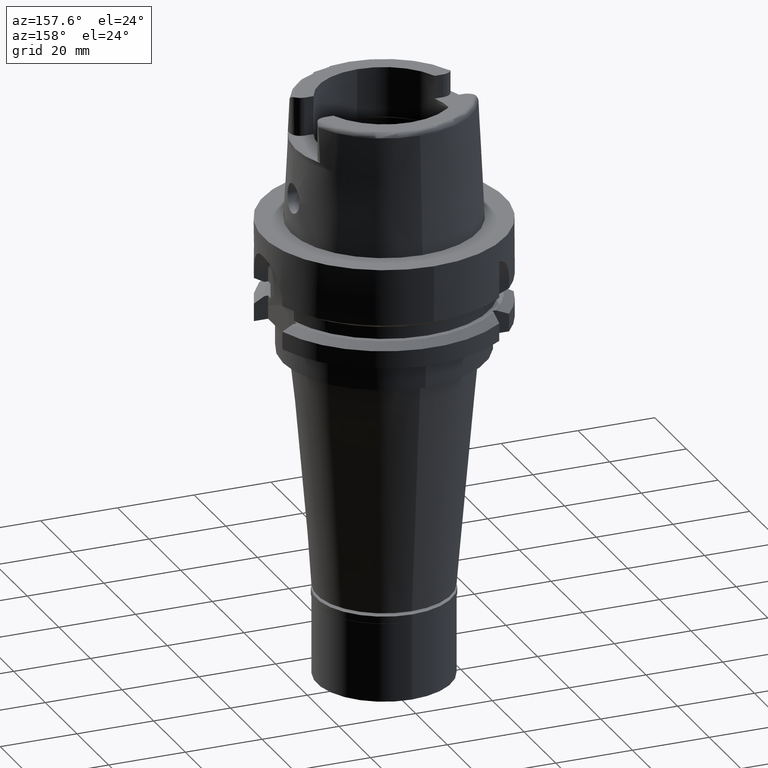
[diagram: clean part render]
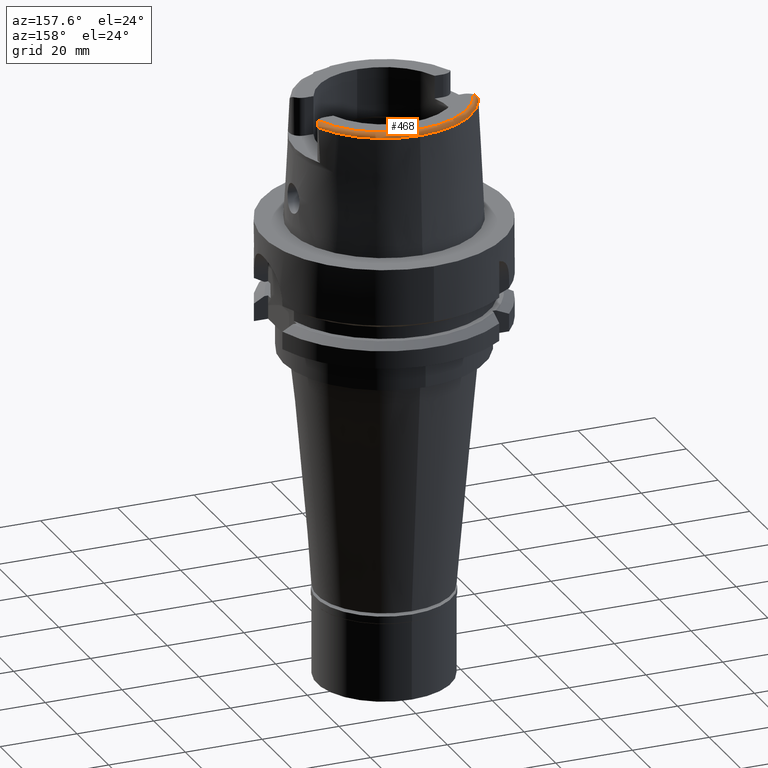
[diagram: same view with one face highlighted and labeled with its STEP entity id]
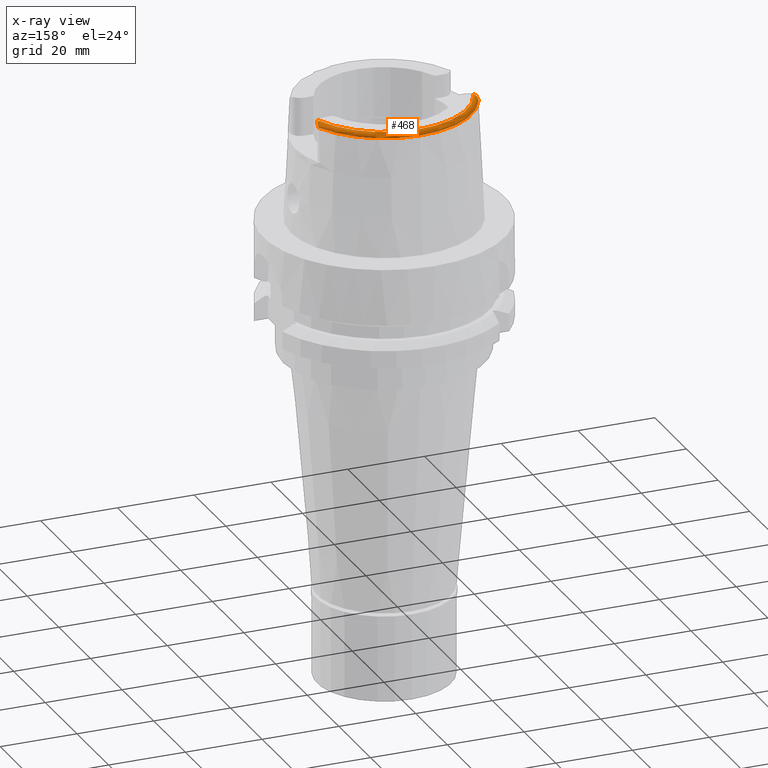
[diagram: x-ray of the same camera — body ghosted, the highlighted face saturated]
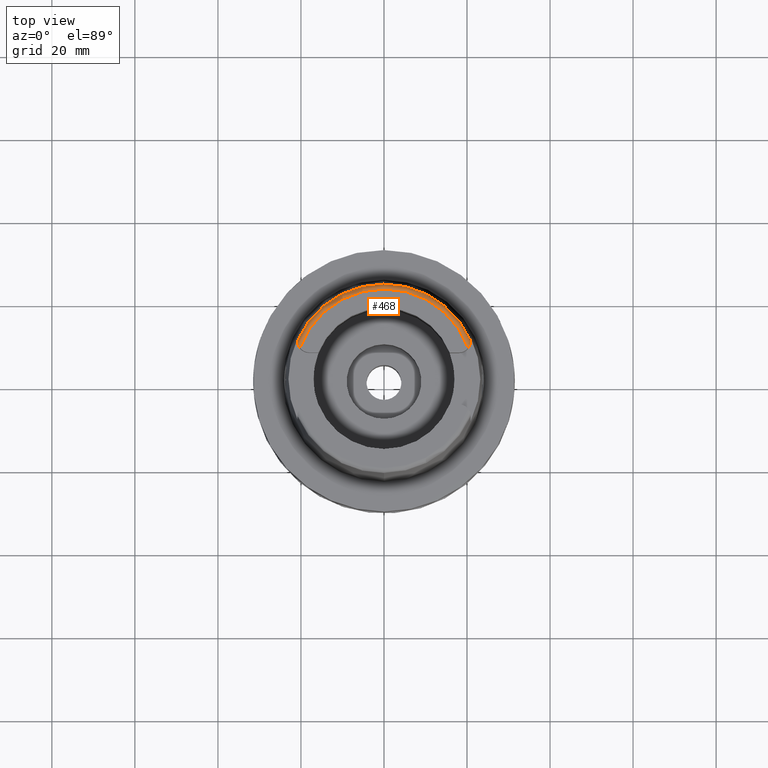
[diagram: same view with one face highlighted and labeled with its STEP entity id]
A machine part, auxiliary view. The second image highlights one B-rep face of the part: STEP entity #468.
The next image is the same camera in x-ray: the body ghosted, the highlighted face saturated — about 0% of this face is hidden behind the body in this view.
A second angle (top view) of the same face is appended — the face is thin or edge-on in the first view.
In plain terms, the highlighted toroidal blend (fillet) surface has major radius 21.5735 mm and minor (blend) radius 1.2 mm.
Its self-contained STEP definition (entity closure, byte-faithful):
#7 = TOROIDAL_SURFACE ( 'NONE', #106, 21.57348458609000019, 1.199999999999999956 ) ;
#55 = B_SPLINE_CURVE_WITH_KNOTS ( 'NONE', 3,
 ( #1801, #157, #1362, #3960 ),
 .UNSPECIFIED., .F., .F.,
 ( 4, 4 ),
 ( 0.0000000000000000000, 1.000000000000000000 ),
 .UNSPECIFIED. ) ;
#67 = VERTEX_POINT ( 'NONE', #2731 ) ;
#106 = AXIS2_PLACEMENT_3D ( 'NONE', #385, #1874, #3242 ) ;
#113 = CARTESIAN_POINT ( 'NONE',  ( 0.0000000000000000000, 0.0000000000000000000, 30.85992712280000205 ) ) ;
#157 = CARTESIAN_POINT ( 'NONE',  ( 20.87000000000000099, 9.104744530406245318, 30.90884546143532674 ) ) ;
#197 = CARTESIAN_POINT ( 'NONE',  ( -20.75055253134364364, 8.329091729766906482, 31.70656646438284199 ) ) ;
#216 = DIRECTION ( 'NONE',  ( 0.0000000000000000000, 0.0000000000000000000, -1.000000000000000000 ) ) ;
#223 = CARTESIAN_POINT ( 'NONE',  ( -20.61597707634912524, 7.967249471448660358, 31.87746724825710132 ) ) ;
#247 = CARTESIAN_POINT ( 'NONE',  ( -20.83207734620328466, 8.677753411955119844, 31.47646825142441074 ) ) ;
#274 = ORIENTED_EDGE ( 'NONE', *, *, #3472, .F. ) ;
#293 = CARTESIAN_POINT ( 'NONE',  ( 20.87000000000000099, 9.070000000000000284, 31.00584217417999966 ) ) ;
#319 = EDGE_CURVE ( 'NONE', #1744, #3413, #3605, .T. ) ;
#385 = CARTESIAN_POINT ( 'NONE',  ( 0.0000000000000000000, 0.0000000000000000000, 30.80000000000000071 ) ) ;
#415 = CARTESIAN_POINT ( 'NONE',  ( -20.84221966324597020, 8.746321035380939080, 31.42026127488749410 ) ) ;
#468 = ADVANCED_FACE ( 'NONE', ( #640 ), #7, .T. ) ;
#528 = DIRECTION ( 'NONE',  ( 0.0000000000000000000, 0.0000000000000000000, -1.000000000000000000 ) ) ;
#565 = EDGE_CURVE ( 'NONE', #1990, #3204, #4847, .T. ) ;
#603 = CARTESIAN_POINT ( 'NONE',  ( -20.66370344468706222, 8.078116150860479294, 31.83255883841079026 ) ) ;
#640 = FACE_OUTER_BOUND ( 'NONE', #1065, .T. ) ;
#664 = CARTESIAN_POINT ( 'NONE',  ( -20.62891659523017296, 7.996408381740554461, 31.86606885274613532 ) ) ;
#677 = CARTESIAN_POINT ( 'NONE',  ( 20.62708735343946032, 7.929163021830337499, 31.87906842405599406 ) ) ;
#738 = CARTESIAN_POINT ( 'NONE',  ( 0.0000000000000000000, 0.0000000000000000000, 30.85992712280000205 ) ) ;
#755 = CARTESIAN_POINT ( 'NONE',  ( 20.80812790947983615, 8.484612967074216527, 31.59602072999934208 ) ) ;
#820 = CARTESIAN_POINT ( 'NONE',  ( 0.0000000000000000000, 22.77198729362000051, 30.85992712280000205 ) ) ;
#853 = CARTESIAN_POINT ( 'NONE',  ( 20.78403160628558410, 8.375250664263308664, 31.66595904763902425 ) ) ;
#928 = EDGE_CURVE ( 'NONE', #3204, #3717, #4038, .T. ) ;
#995 = DIRECTION ( 'NONE',  ( -0.9395199128801114963, 0.3424942821446042007, 0.0000000000000000000 ) ) ;
#1065 = EDGE_LOOP ( 'NONE', ( #4591, #274, #4803, #4850, #4356, #5270 ) ) ;
#1071 = CARTESIAN_POINT ( 'NONE',  ( -20.80898429863476196, 8.559915162000578448, 31.56189280836373001 ) ) ;
#1112 = CARTESIAN_POINT ( 'NONE',  ( 20.65620179696908210, 7.996386078922752993, 31.85285102458320594 ) ) ;
#1168 = CARTESIAN_POINT ( 'NONE',  ( 20.81760054353890865, 8.530290260113611467, 31.56595774672369714 ) ) ;
#1205 = CARTESIAN_POINT ( 'NONE',  ( -20.86974110888999689, 9.111383544930001577, 30.85992740201000117 ) ) ;
#1269 = CARTESIAN_POINT ( 'NONE',  ( 20.85720172933440608, 8.797369775704238393, 31.35967840067433698 ) ) ;
#1362 = CARTESIAN_POINT ( 'NONE',  ( 20.87000000000000099, 9.091125264149576779, 30.95748277890866262 ) ) ;
#1386 = CARTESIAN_POINT ( 'NONE',  ( -20.86974110888999689, 9.111383544930001577, 30.85992740201000117 ) ) ;
#1452 = EDGE_CURVE ( 'NONE', #3717, #67, #55, .T. ) ;
#1453 = CARTESIAN_POINT ( 'NONE',  ( -20.79483016963291320, 8.495913259825712771, 31.60526339057393486 ) ) ;
#1545 = CARTESIAN_POINT ( 'NONE',  ( 20.63146032315612999, 7.939036916245964193, 31.87531411682859073 ) ) ;
#1574 = CARTESIAN_POINT ( 'NONE',  ( 20.82934825906085408, 8.592292302589214614, 31.52341069058531176 ) ) ;
#1588 = CARTESIAN_POINT ( 'NONE',  ( -20.86261050773239134, 8.942725714805623838, 31.21867867333055102 ) ) ;
#1744 = VERTEX_POINT ( 'NONE', #3016 ) ;
#1801 = CARTESIAN_POINT ( 'NONE',  ( 20.86994457043000040, 9.110917567833000774, 30.85992712280000205 ) ) ;
#1842 = CARTESIAN_POINT ( 'NONE',  ( -20.73801250936140761, 8.288016427801872865, 31.72924703318835071 ) ) ;
#1874 = DIRECTION ( 'NONE',  ( 0.0000000000000000000, 0.0000000000000000000, 1.000000000000000000 ) ) ;
#1884 = B_SPLINE_CURVE_WITH_KNOTS ( 'NONE', 3,
 ( #2355, #1954, #4355, #4795, #3169, #2308, #3630, #223, #664, #4000, #603, #4768, #3948, #1842, #2672, #197, #3553, #5252, #1453, #5274, #1071, #2331, #247, #415, #2803, #5356, #5417, #1588, #5440, #2438, #1205 ),
 .UNSPECIFIED., .F., .F.,
 ( 4, 2, 2, 1, 2, 2, 1, 1, 2, 2, 2, 2, 2, 2, 2, 2, 4 ),
 ( 0.0000000000000000000, 0.1250000000000083267, 0.1875000000000121292, 0.2187500000000129619, 0.2343750000000140166, 0.2500000000000150990, 0.3125000000000175970, 0.3437500000000188183, 0.3593750000000189848, 0.3750000000000191513, 0.4375000000000111577, 0.4687500000000088818, 0.5000000000000066613, 0.6250000000000064393, 0.6875000000000053291, 0.7500000000000043299, 1.000000000000000000 ),
 .UNSPECIFIED. ) ;
#1941 = CARTESIAN_POINT ( 'NONE',  ( 20.86553564939725902, 8.903263224952288724, 31.25452347758274385 ) ) ;
#1954 = CARTESIAN_POINT ( 'NONE',  ( -20.34118759868380621, 7.482558760432435285, 32.00000000000000000 ) ) ;
#1990 = VERTEX_POINT ( 'NONE', #1386 ) ;
#1992 = CARTESIAN_POINT ( 'NONE',  ( 20.80533968137952527, 8.471710275974487558, 31.60434862615828777 ) ) ;
#2123 = CARTESIAN_POINT ( 'NONE',  ( 20.68874327068195029, 8.076795901193991156, 31.81917191785262844 ) ) ;
#2305 = EDGE_CURVE ( 'NONE', #1744, #1990, #1884, .T. ) ;
#2308 = CARTESIAN_POINT ( 'NONE',  ( -20.57559598088326780, 7.881109824722799750, 31.90881283591226492 ) ) ;
#2331 = CARTESIAN_POINT ( 'NONE',  ( -20.81360826414352871, 8.582538414720454867, 31.54587476432773485 ) ) ;
#2355 = CARTESIAN_POINT ( 'NONE',  ( -20.26871835884000106, 7.388795116669998997, 32.00000000000000000 ) ) ;
#2427 = CARTESIAN_POINT ( 'NONE',  ( 20.64146331210635665, 7.961968900071607180, 31.86644135611128092 ) ) ;
#2438 = CARTESIAN_POINT ( 'NONE',  ( -20.86956482177872374, 9.098238401912917439, 30.96834579846764512 ) ) ;
#2532 = CARTESIAN_POINT ( 'NONE',  ( 20.41078809901851443, 7.519195378382825368, 32.00000000000000000 ) ) ;
#2672 = CARTESIAN_POINT ( 'NONE',  ( -20.74610444218586025, 8.314250794729877825, 31.71486670807928476 ) ) ;
#2697 = DIRECTION ( 'NONE',  ( 0.0000000000000000000, 0.0000000000000000000, -1.000000000000000000 ) ) ;
#2731 = CARTESIAN_POINT ( 'NONE',  ( 20.87000000000000099, 9.070000000000000284, 31.00584217417999966 ) ) ;
#2803 = CARTESIAN_POINT ( 'NONE',  ( -20.85311187223942753, 8.837080145225122862, 31.33492816076070753 ) ) ;
#2823 = CARTESIAN_POINT ( 'NONE',  ( 20.80613208864298969, 8.475354205860215373, 31.60200387475772033 ) ) ;
#3016 = CARTESIAN_POINT ( 'NONE',  ( -20.26871835884000106, 7.388795116669998997, 32.00000000000000000 ) ) ;
#3158 = DIRECTION ( 'NONE',  ( 0.0000000000000000000, 1.000000000000000000, 0.0000000000000000000 ) ) ;
#3169 = CARTESIAN_POINT ( 'NONE',  ( -20.53311215290845837, 7.796879166213100731, 31.93616898513858260 ) ) ;
#3177 = AXIS2_PLACEMENT_3D ( 'NONE', #113, #216, #3158 ) ;
#3204 = VERTEX_POINT ( 'NONE', #820 ) ;
#3210 = CARTESIAN_POINT ( 'NONE',  ( 20.85108599203367419, 8.738698658234238081, 31.41103978390304974 ) ) ;
#3234 = CARTESIAN_POINT ( 'NONE',  ( 20.86978472404920026, 9.019513985306574000, 31.10455896996903036 ) ) ;
#3242 = DIRECTION ( 'NONE',  ( -0.0006539142454762719193, -0.9999997861980568503, 0.0000000000000000000 ) ) ;
#3413 = VERTEX_POINT ( 'NONE', #4479 ) ;
#3472 = EDGE_CURVE ( 'NONE', #67, #3413, #4367, .T. ) ;
#3553 = CARTESIAN_POINT ( 'NONE',  ( -20.76722130532460397, 8.386002300808844012, 31.67423240968510356 ) ) ;
#3605 = CIRCLE ( 'NONE', #5124, 21.57348458608998598 ) ;
#3630 = CARTESIAN_POINT ( 'NONE',  ( -20.59625057177555973, 7.923776295044291373, 31.89399492174799988 ) ) ;
#3644 = CARTESIAN_POINT ( 'NONE',  ( 20.87000000000000455, 9.048562306985155956, 31.05491677331999156 ) ) ;
#3717 = VERTEX_POINT ( 'NONE', #4124 ) ;
#3948 = CARTESIAN_POINT ( 'NONE',  ( -20.72556355837290809, 8.248655325493556845, 31.75043079132500878 ) ) ;
#3960 = CARTESIAN_POINT ( 'NONE',  ( 20.87000000000000099, 9.070000000000000284, 31.00584217417999966 ) ) ;
#4000 = CARTESIAN_POINT ( 'NONE',  ( -20.63599447515870011, 8.012760005126125407, 31.85948596222181450 ) ) ;
#4038 = CIRCLE ( 'NONE', #3177, 22.77198729362000051 ) ;
#4124 = CARTESIAN_POINT ( 'NONE',  ( 20.86994457043000040, 9.110917567833000774, 30.85992712280000205 ) ) ;
#4220 = CARTESIAN_POINT ( 'NONE',  ( 20.52684416390292199, 7.707527546190097389, 31.96130189569791469 ) ) ;
#4355 = CARTESIAN_POINT ( 'NONE',  ( -20.40935872696189080, 7.582734712708103508, 31.98784171145496913 ) ) ;
#4356 = ORIENTED_EDGE ( 'NONE', *, *, #565, .F. ) ;
#4367 = B_SPLINE_CURVE_WITH_KNOTS ( 'NONE', 3,
 ( #293, #3644, #3234, #4950, #1941, #1269, #3210, #5344, #1574, #1168, #4892, #755, #2823, #1992, #853, #4541, #4510, #2123, #1112, #2427, #1545, #677, #4220, #2532, #5375 ),
 .UNSPECIFIED., .F., .F.,
 ( 4, 2, 2, 2, 1, 1, 1, 2, 2, 2, 1, 1, 2, 2, 4 ),
 ( 0.0000000000000000000, 0.1249999999999770184, 0.2499999999999540368, 0.3749999999999310552, 0.4374999999999155675, 0.4687499999999078515, 0.4843749999999070743, 0.4921874999999056866, 0.4999999999999042988, 0.6249999999999217293, 0.6874999999999309441, 0.7187499999999340528, 0.7343749999999364952, 0.7499999999999389377, 1.000000000000000000 ),
 .UNSPECIFIED. ) ;
#4381 = DIRECTION ( 'NONE',  ( -0.9164655183265837390, 0.4001136759951928745, 0.0000000000000000000 ) ) ;
#4479 = CARTESIAN_POINT ( 'NONE',  ( 20.28174256341000259, 7.352969181062000814, 32.00000000000000000 ) ) ;
#4510 = CARTESIAN_POINT ( 'NONE',  ( 20.71351573899823961, 8.145789407199680809, 31.78692982665785749 ) ) ;
#4541 = CARTESIAN_POINT ( 'NONE',  ( 20.75904213866516557, 8.283606265801912727, 31.71794659703399688 ) ) ;
#4591 = ORIENTED_EDGE ( 'NONE', *, *, #319, .T. ) ;
#4674 = AXIS2_PLACEMENT_3D ( 'NONE', #738, #2697, #4381 ) ;
#4768 = CARTESIAN_POINT ( 'NONE',  ( -20.69431868437692401, 8.156783336377054994, 31.79715245362211462 ) ) ;
#4771 = CARTESIAN_POINT ( 'NONE',  ( 0.0000000000000000000, 0.0000000000000000000, 32.00000000000000000 ) ) ;
#4795 = CARTESIAN_POINT ( 'NONE',  ( -20.50322353346735937, 7.742196123941607944, 31.95136684581985875 ) ) ;
#4803 = ORIENTED_EDGE ( 'NONE', *, *, #1452, .F. ) ;
#4847 = CIRCLE ( 'NONE', #4674, 22.77198729362000407 ) ;
#4850 = ORIENTED_EDGE ( 'NONE', *, *, #928, .F. ) ;
#4892 = CARTESIAN_POINT ( 'NONE',  ( 20.81107196515130653, 8.498441712472958542, 31.58703176194397599 ) ) ;
#4950 = CARTESIAN_POINT ( 'NONE',  ( 20.86750395206983555, 8.946246305701684776, 31.20497855828521594 ) ) ;
#5124 = AXIS2_PLACEMENT_3D ( 'NONE', #4771, #528, #995 ) ;
#5252 = CARTESIAN_POINT ( 'NONE',  ( -20.77906033196589775, 8.430590908263120298, 31.64728993849800887 ) ) ;
#5270 = ORIENTED_EDGE ( 'NONE', *, *, #2305, .F. ) ;
#5274 = CARTESIAN_POINT ( 'NONE',  ( -20.79975528233408610, 8.517427596727548789, 31.59098573440869728 ) ) ;
#5344 = CARTESIAN_POINT ( 'NONE',  ( 20.83735658087193343, 8.642463425143278144, 31.48625774127049226 ) ) ;
#5356 = CARTESIAN_POINT ( 'NONE',  ( -20.85601658906498201, 8.865323021000685699, 31.30631334783155140 ) ) ;
#5375 = CARTESIAN_POINT ( 'NONE',  ( 20.28174256341000259, 7.352969181062000814, 32.00000000000000000 ) ) ;
#5417 = CARTESIAN_POINT ( 'NONE',  ( -20.86073866469224214, 8.917725183868624228, 31.24874283886610016 ) ) ;
#5440 = CARTESIAN_POINT ( 'NONE',  ( -20.86948978601688154, 9.049011351019462523, 31.07859033287762784 ) ) ;